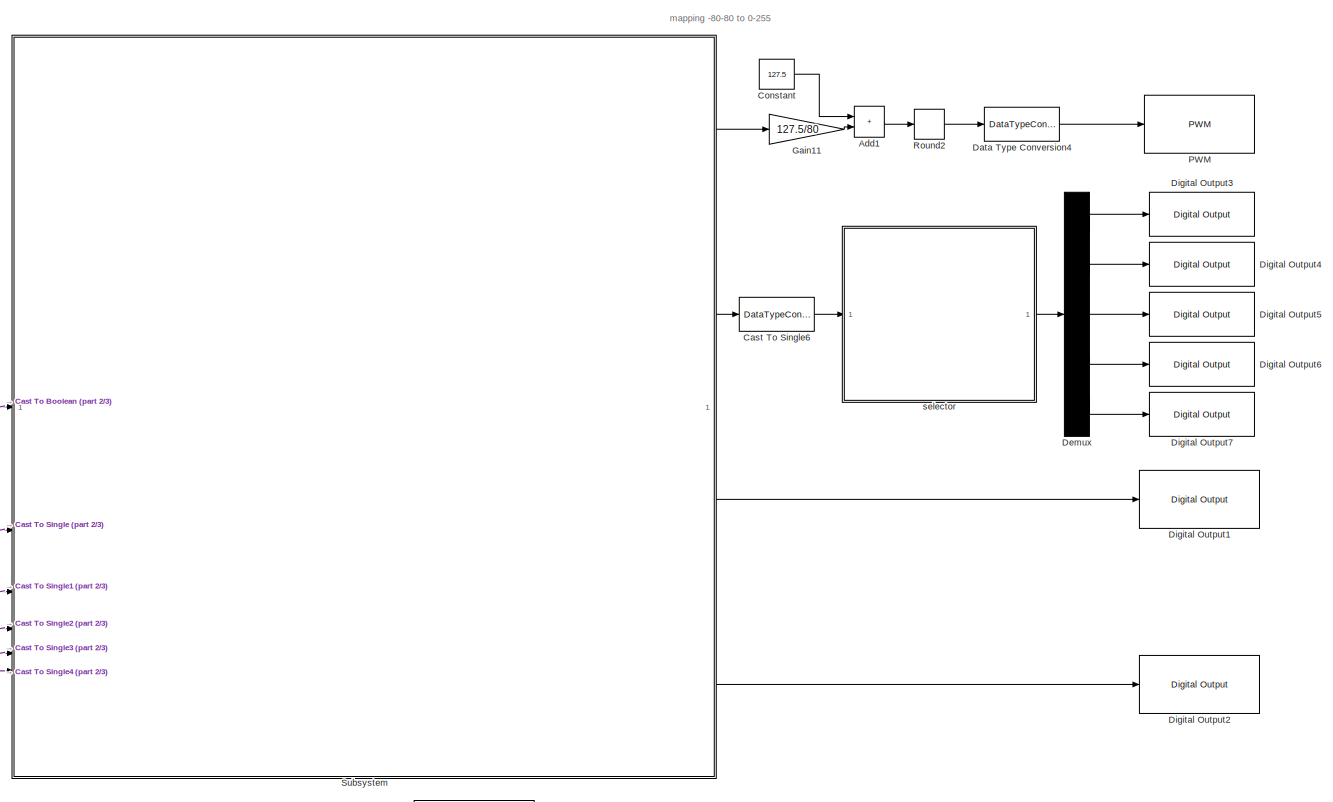
[diagram: root canvas - part 1/3, center side, full height]
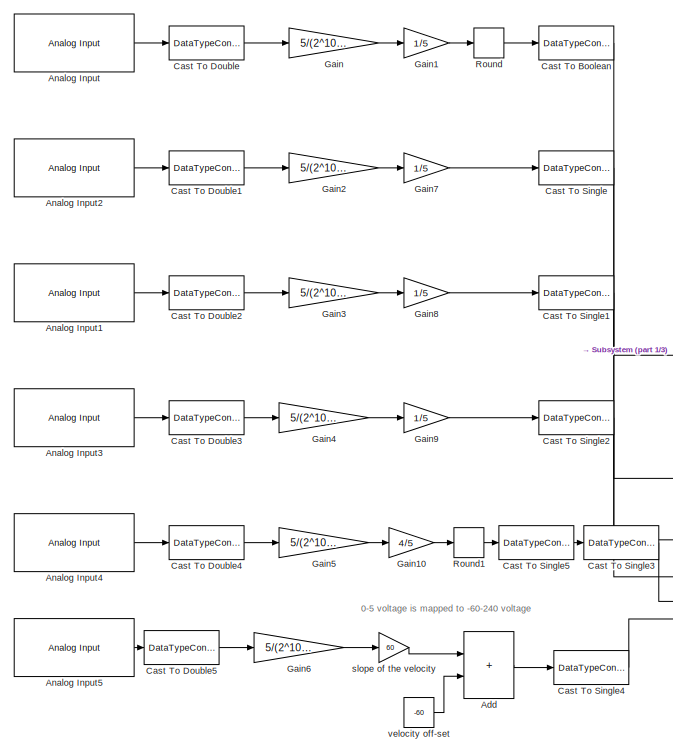
[diagram: root canvas - part 2/3, left side, full height]
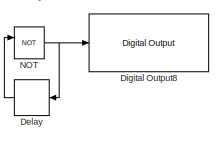
[diagram: root canvas - part 3/3, bottom center region]
MODEL slx_02bf0210b72b
KIND model
CONFIG AbsTol = auto
CONFIG EnableMultiTasking = on
CONFIG FixedStep = 1/10
CONFIG MaxStep = auto
CONFIG MinStep = auto
CONFIG RelTol = 1e-3
CONFIG SampleTimeConstraint = Unconstrained
CONFIG SolverName = FixedStepAuto
CONFIG StartTime = 0.0
CONFIG StopTime = 100
BLOCK [Sum] Add
  IconShape = rectangular
BLOCK [Sum] Add1
  IconShape = rectangular
BLOCK [Reference] Analog Input  REF=arduinolib/Analog Input
  SourceBlock = arduinolib/Analog Input
  SourceProductName = Common
  SourceType = Arduino Analog Input
BLOCK [Reference] Analog Input1  REF=arduinolib/Analog Input
  SourceBlock = arduinolib/Analog Input
  SourceProductName = Common
  SourceType = Arduino Analog Input
BLOCK [Reference] Analog Input2  REF=arduinolib/Analog Input
  SourceBlock = arduinolib/Analog Input
  SourceProductName = Common
  SourceType = Arduino Analog Input
BLOCK [Reference] Analog Input3  REF=arduinolib/Analog Input
  SourceBlock = arduinolib/Analog Input
  SourceProductName = Common
  SourceType = Arduino Analog Input
BLOCK [Reference] Analog Input4  REF=arduinolib/Analog Input
  SourceBlock = arduinolib/Analog Input
  SourceProductName = Common
  SourceType = Arduino Analog Input
BLOCK [Reference] Analog Input5  REF=arduinolib/Analog Input
  SourceBlock = arduinolib/Analog Input
  SourceProductName = Common
  SourceType = Arduino Analog Input
BLOCK [DataTypeConversion] Cast To Boolean
  OutDataTypeStr = boolean
  RndMeth = Floor
  SaturateOnIntegerOverflow = off
BLOCK [DataTypeConversion] Cast To Double
  OutDataTypeStr = double
  RndMeth = Floor
  SaturateOnIntegerOverflow = off
BLOCK [DataTypeConversion] Cast To Double1
  OutDataTypeStr = double
  RndMeth = Floor
  SaturateOnIntegerOverflow = off
BLOCK [DataTypeConversion] Cast To Double2
  OutDataTypeStr = double
  RndMeth = Floor
  SaturateOnIntegerOverflow = off
BLOCK [DataTypeConversion] Cast To Double3
  OutDataTypeStr = double
  RndMeth = Floor
  SaturateOnIntegerOverflow = off
BLOCK [DataTypeConversion] Cast To Double4
  OutDataTypeStr = double
  RndMeth = Floor
  SaturateOnIntegerOverflow = off
BLOCK [DataTypeConversion] Cast To Double5
  OutDataTypeStr = double
  RndMeth = Floor
  SaturateOnIntegerOverflow = off
BLOCK [DataTypeConversion] Cast To Single
  OutDataTypeStr = single
  RndMeth = Floor
  SaturateOnIntegerOverflow = off
BLOCK [DataTypeConversion] Cast To Single1
  OutDataTypeStr = single
  RndMeth = Floor
  SaturateOnIntegerOverflow = off
BLOCK [DataTypeConversion] Cast To Single2
  OutDataTypeStr = single
  RndMeth = Floor
  SaturateOnIntegerOverflow = off
BLOCK [DataTypeConversion] Cast To Single3
  OutDataTypeStr = Enum: TransmissionState
  RndMeth = Floor
  SaturateOnIntegerOverflow = off
BLOCK [DataTypeConversion] Cast To Single4
  OutDataTypeStr = single
  RndMeth = Floor
  SaturateOnIntegerOverflow = off
BLOCK [DataTypeConversion] Cast To Single5
  OutDataTypeStr = int32
  RndMeth = Floor
  SaturateOnIntegerOverflow = off
BLOCK [DataTypeConversion] Cast To Single6
  OutDataTypeStr = int32
  RndMeth = Floor
  SaturateOnIntegerOverflow = off
BLOCK [Constant] Constant
  Value = 127.5
BLOCK [DataTypeConversion] Data Type Conversion4
  OutDataTypeStr = int32
  RndMeth = Floor
  SaturateOnIntegerOverflow = off
BLOCK [Delay] Delay
  DelayLength = 1
  InputPortMap = u0
  InputProcessing = Columns as channels (frame based)
  NameLocation = top
BLOCK [Demux] Demux
  Outputs = 5
BLOCK [Reference] Digital Output1  REF=arduinolib/Digital Output
  SourceBlock = arduinolib/Digital Output
  SourceProductName = Common
  SourceType = Arduino Digital Output
BLOCK [Reference] Digital Output2  REF=arduinolib/Digital Output
  SourceBlock = arduinolib/Digital Output
  SourceProductName = Common
  SourceType = Arduino Digital Output
BLOCK [Reference] Digital Output3  REF=arduinolib/Digital Output
  SourceBlock = arduinolib/Digital Output
  SourceProductName = Common
  SourceType = Arduino Digital Output
BLOCK [Reference] Digital Output4  REF=arduinolib/Digital Output
  SourceBlock = arduinolib/Digital Output
  SourceProductName = Common
  SourceType = Arduino Digital Output
BLOCK [Reference] Digital Output5  REF=arduinolib/Digital Output
  SourceBlock = arduinolib/Digital Output
  SourceProductName = Common
  SourceType = Arduino Digital Output
BLOCK [Reference] Digital Output6  REF=arduinolib/Digital Output
  SourceBlock = arduinolib/Digital Output
  SourceProductName = Common
  SourceType = Arduino Digital Output
BLOCK [Reference] Digital Output7  REF=arduinolib/Digital Output
  SourceBlock = arduinolib/Digital Output
  SourceProductName = Common
  SourceType = Arduino Digital Output
BLOCK [Reference] Digital Output8  REF=arduinolib/Digital Output
  SourceBlock = arduinolib/Digital Output
  SourceProductName = Common
  SourceType = Arduino Digital Output
BLOCK [Gain] Gain
  Gain = 5/(2^10-1)
BLOCK [Gain] Gain1
  Gain = 1/5
BLOCK [Gain] Gain10
  Gain = 4/5
BLOCK [Gain] Gain11
  Gain = 127.5/80
BLOCK [Gain] Gain2
  Gain = 5/(2^10-1)
BLOCK [Gain] Gain3
  Gain = 5/(2^10-1)
BLOCK [Gain] Gain4
  Gain = 5/(2^10-1)
BLOCK [Gain] Gain5
  Gain = 5/(2^10-1)
BLOCK [Gain] Gain6
  Gain = 5/(2^10-1)
BLOCK [Gain] Gain7
  Gain = 1/5
BLOCK [Gain] Gain8
  Gain = 1/5
BLOCK [Gain] Gain9
  Gain = 1/5
BLOCK [Logic] NOT
  AllPortsSameDT = off
  IconShape = distinctive
  Operator = NOT
  OutDataTypeStr = boolean
BLOCK [Reference] PWM  REF=arduinolib/PWM
  SourceBlock = arduinolib/PWM
  SourceProductName = Common
  SourceType = Arduino PWM
BLOCK [Rounding] Round
  Operator = round
BLOCK [Rounding] Round1
  Operator = round
BLOCK [Rounding] Round2
  Operator = round
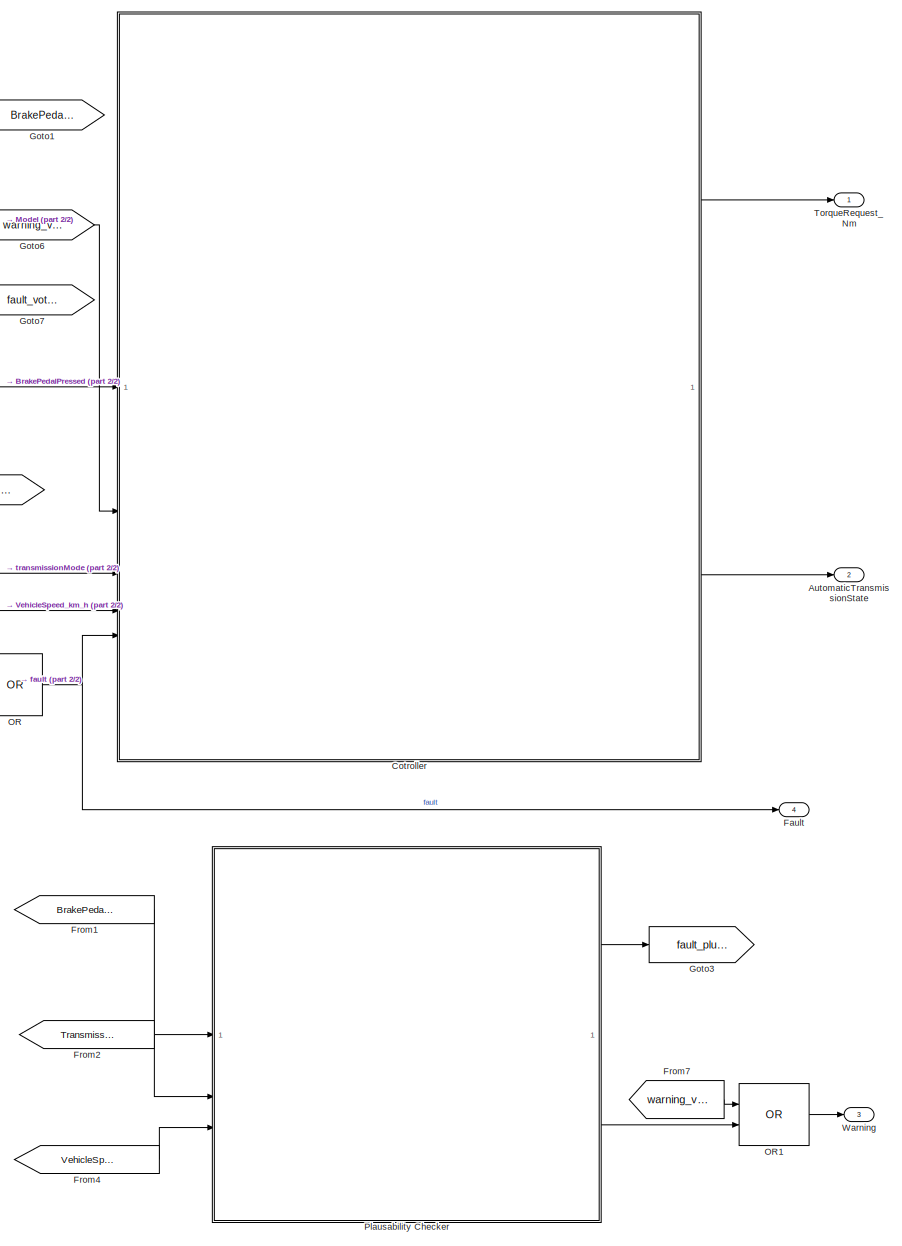
[diagram: Subsystem - part 1/2, right side, full height]
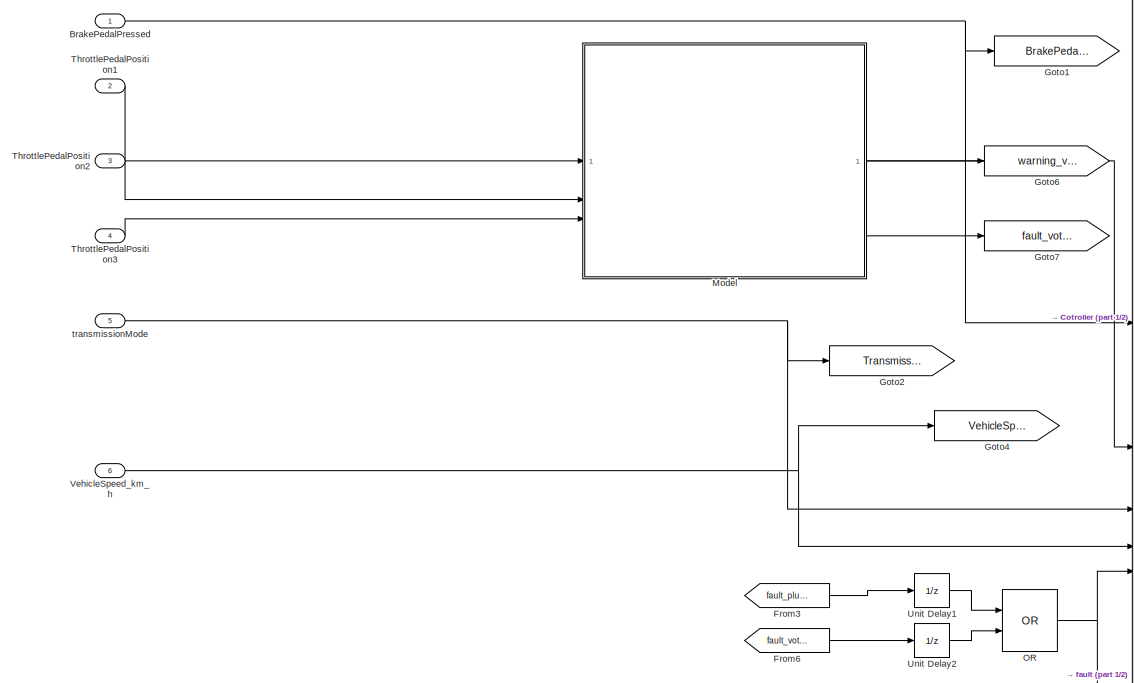
[diagram: Subsystem - part 2/2, middle left region]
BLOCK [SubSystem] Subsystem
BLOCK [Outport] Subsystem/AutomaticTransmissionState
  OutDataTypeStr = Enum: TransmissionState
  Port = 2
BLOCK [Inport] Subsystem/BrakePedalPressed
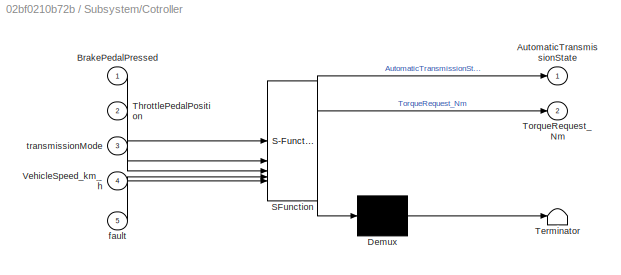
BLOCK [SubSystem] Subsystem/Cotroller
  ErrorFcn = Stateflow.Translate.translate
  PermitHierarchicalResolution = ExplicitOnly
  PortSchema = {"entries":[{"content":{"sides":[{"content":{"connectorIds":["In1","In2","In3","In4","In5"]},"type":"ConnectorPlacement.EquallySpacedRectSide","uuid":"fa3865f3-071a-4523-b56b-dfcb7b7ff1e1"},{"content":{"connectorIds":["Out2","Out1"],"side":"RIGHT"},"type":"ConnectorPlacement.EquallySpacedRectSide","uuid":"97edfdd5-6ca1-4319-83ef-4a85a5b2efa4"},{"content":{"side":"TOP"},"type":"ConnectorPlacement.E...<+253ch>
  SFBlockType = Chart
  TreatAsAtomicUnit = on
BLOCK [Demux] Subsystem/Cotroller/ Demux 
  Outputs = 1
BLOCK [S-Function] Subsystem/Cotroller/ SFunction 
  EnableBusSupport = on
  FunctionName = sf_sfun
  Parameters = MAX_RDB_ENGAGE_SPEED,MAX_TORQUE,MAX_TORQUE_REVERSE
  PortCounts = [5 3]
  SFcnIsStateOwnerBlock = off
  SFunctionDeploymentMode = off
  Tag = Stateflow S-Function 3
BLOCK [Terminator] Subsystem/Cotroller/ Terminator 
BLOCK [Outport] Subsystem/Cotroller/AutomaticTransmissionState
BLOCK [Inport] Subsystem/Cotroller/BrakePedalPressed
BLOCK [Inport] Subsystem/Cotroller/ThrottlePedalPosition
  Port = 2
BLOCK [Outport] Subsystem/Cotroller/TorqueRequest_Nm
  Port = 2
BLOCK [Inport] Subsystem/Cotroller/VehicleSpeed_km_h
  Port = 4
BLOCK [Inport] Subsystem/Cotroller/fault
  Port = 5
BLOCK [Inport] Subsystem/Cotroller/transmissionMode
  Port = 3
BLOCK [Outport] Subsystem/Fault
  OutDataTypeStr = boolean
  Port = 4
BLOCK [From] Subsystem/From1
  GotoTag = BrakePedalPressed
BLOCK [From] Subsystem/From2
  GotoTag = TransmissionMode
BLOCK [From] Subsystem/From3
  GotoTag = fault_plusibility
BLOCK [From] Subsystem/From4
  GotoTag = VehicleSpeed_km_h
BLOCK [From] Subsystem/From6
  GotoTag = fault_voter
BLOCK [From] Subsystem/From7
  GotoTag = warning_voter
BLOCK [Goto] Subsystem/Goto1
  GotoTag = BrakePedalPressed
BLOCK [Goto] Subsystem/Goto2
  GotoTag = TransmissionMode
BLOCK [Goto] Subsystem/Goto3
  GotoTag = fault_plusibility
BLOCK [Goto] Subsystem/Goto4
  GotoTag = VehicleSpeed_km_h
BLOCK [Goto] Subsystem/Goto6
  GotoTag = warning_voter
BLOCK [Goto] Subsystem/Goto7
  GotoTag = fault_voter
BLOCK [ModelReference] Subsystem/Model
  ModelNameDialog = voter.slx
  ModelReferenceVersion = 1.26
BLOCK [Logic] Subsystem/OR
  AllPortsSameDT = off
  IconShape = distinctive
  Operator = OR
  OutDataTypeStr = boolean
BLOCK [Logic] Subsystem/OR1
  AllPortsSameDT = off
  IconShape = distinctive
  Operator = OR
  OutDataTypeStr = boolean
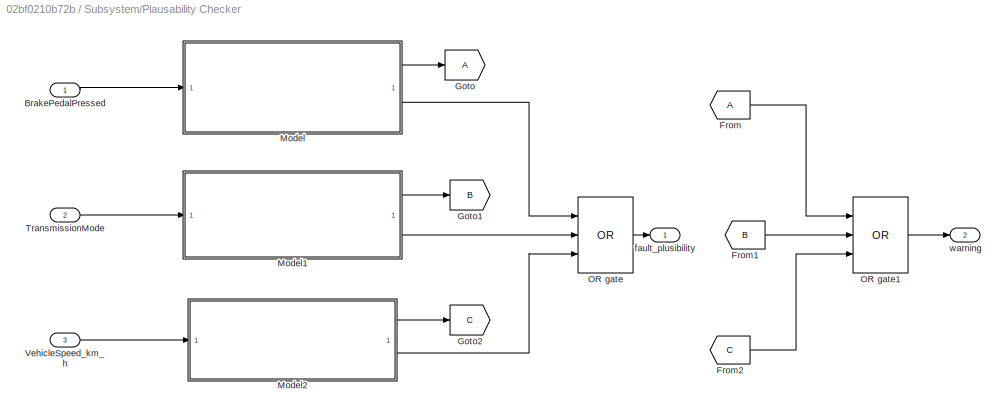
BLOCK [SubSystem] Subsystem/Plausability Checker
BLOCK [Inport] Subsystem/Plausability Checker/BrakePedalPressed
BLOCK [From] Subsystem/Plausability Checker/From
BLOCK [From] Subsystem/Plausability Checker/From1
  GotoTag = B
BLOCK [From] Subsystem/Plausability Checker/From2
  GotoTag = C
BLOCK [Goto] Subsystem/Plausability Checker/Goto
BLOCK [Goto] Subsystem/Plausability Checker/Goto1
  GotoTag = B
BLOCK [Goto] Subsystem/Plausability Checker/Goto2
  GotoTag = C
BLOCK [ModelReference] Subsystem/Plausability Checker/Model
  ModelNameDialog = BrakePedalPressed_plausibility.slx
  ModelReferenceVersion = 1.19
BLOCK [ModelReference] Subsystem/Plausability Checker/Model1
  ModelNameDialog = TransmissionMode_plausibility.slx
  ModelReferenceVersion = 1.13
BLOCK [ModelReference] Subsystem/Plausability Checker/Model2
  ModelNameDialog = velocity_plausibility.slx
  ModelReferenceVersion = 1.14
BLOCK [Logic] Subsystem/Plausability Checker/OR gate
  AllPortsSameDT = off
  IconShape = distinctive
  Inputs = 3
  Operator = OR
  OutDataTypeStr = boolean
BLOCK [Logic] Subsystem/Plausability Checker/OR gate1
  AllPortsSameDT = off
  IconShape = distinctive
  Inputs = 3
  Operator = OR
  OutDataTypeStr = boolean
BLOCK [Inport] Subsystem/Plausability Checker/TransmissionMode
  OutDataTypeStr = Enum: TransmissionState
  Port = 2
BLOCK [Inport] Subsystem/Plausability Checker/VehicleSpeed_km_h
  Port = 3
BLOCK [Outport] Subsystem/Plausability Checker/fault_plusibility
  OutDataTypeStr = boolean
BLOCK [Outport] Subsystem/Plausability Checker/warning
  Port = 2
BLOCK [Inport] Subsystem/ThrottlePedalPosition1
  Port = 2
BLOCK [Inport] Subsystem/ThrottlePedalPosition2
  Port = 3
BLOCK [Inport] Subsystem/ThrottlePedalPosition3
  Port = 4
BLOCK [Outport] Subsystem/TorqueRequest_Nm
  OutDataTypeStr = single
  Unit = N*m
BLOCK [UnitDelay] Subsystem/Unit Delay1
  HasFrameUpgradeWarning = on
  SampleTime = -1
BLOCK [UnitDelay] Subsystem/Unit Delay2
  HasFrameUpgradeWarning = on
  SampleTime = -1
BLOCK [Inport] Subsystem/VehicleSpeed_km_h
  Port = 6
BLOCK [Outport] Subsystem/Warning
  OutDataTypeStr = boolean
  Port = 3
BLOCK [Inport] Subsystem/transmissionMode
  Port = 5
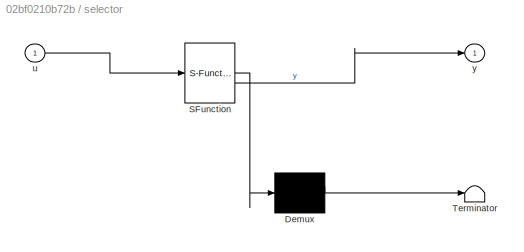
BLOCK [SubSystem] selector
  ErrorFcn = Stateflow.Translate.translate
  PermitHierarchicalResolution = ExplicitOnly
  SFBlockType = MATLAB Function
  TreatAsAtomicUnit = on
BLOCK [Demux] selector/ Demux 
  Outputs = 1
BLOCK [S-Function] selector/ SFunction 
  EnableBusSupport = on
  FunctionName = sf_sfun
  PortCounts = [1 2]
  SFcnIsStateOwnerBlock = off
  SFunctionDeploymentMode = off
  Tag = Stateflow S-Function 2
BLOCK [Terminator] selector/ Terminator 
BLOCK [Inport] selector/u
BLOCK [Outport] selector/y
BLOCK [Gain] slope of the velocity
  Gain = 60
BLOCK [Constant] velocity off-set
  Value = -60
ANNOTATION (root): 0-5 voltage is mapped to -60-240 voltage
ANNOTATION (root): mapping -80-80 to 0-255
LINE Add1:1 -> Round2:1
LINE Add:1 -> Cast To Single4:1
LINE Analog Input1:1 -> Cast To Double2:1
LINE Analog Input2:1 -> Cast To Double1:1
LINE Analog Input3:1 -> Cast To Double3:1
LINE Analog Input4:1 -> Cast To Double4:1
LINE Analog Input5:1 -> Cast To Double5:1
LINE Analog Input:1 -> Cast To Double:1
LINE Cast To Boolean:1 -> Subsystem:1
LINE Cast To Double1:1 -> Gain2:1
LINE Cast To Double2:1 -> Gain3:1
LINE Cast To Double3:1 -> Gain4:1
LINE Cast To Double4:1 -> Gain5:1
LINE Cast To Double5:1 -> Gain6:1
LINE Cast To Double:1 -> Gain:1
LINE Cast To Single1:1 -> Subsystem:3
LINE Cast To Single2:1 -> Subsystem:4
LINE Cast To Single3:1 -> Subsystem:5
LINE Cast To Single4:1 -> Subsystem:6
LINE Cast To Single5:1 -> Cast To Single3:1
LINE Cast To Single6:1 -> selector:1
LINE Cast To Single:1 -> Subsystem:2
LINE Constant:1 -> Add1:1
LINE Data Type Conversion4:1 -> PWM:1
LINE Delay:1 -> NOT:1
LINE Demux:1 -> Digital Output3:1
LINE Demux:2 -> Digital Output4:1
LINE Demux:3 -> Digital Output5:1
LINE Demux:4 -> Digital Output6:1
LINE Demux:5 -> Digital Output7:1
LINE Gain10:1 -> Round1:1
LINE Gain11:1 -> Add1:2
LINE Gain1:1 -> Round:1
LINE Gain2:1 -> Gain7:1
LINE Gain3:1 -> Gain8:1
LINE Gain4:1 -> Gain9:1
LINE Gain5:1 -> Gain10:1
LINE Gain6:1 -> slope of the velocity:1
LINE Gain7:1 -> Cast To Single:1
LINE Gain8:1 -> Cast To Single1:1
LINE Gain9:1 -> Cast To Single2:1
LINE Gain:1 -> Gain1:1
NET NOT:1 -> Delay:1, Digital Output8:1
LINE Round1:1 -> Cast To Single5:1
LINE Round2:1 -> Data Type Conversion4:1
LINE Round:1 -> Cast To Boolean:1
NET Subsystem/BrakePedalPressed:1 -> Subsystem/Cotroller:1, Subsystem/Goto1:1
LINE Subsystem/Cotroller:1 -> Subsystem/AutomaticTransmissionState:1
LINE Subsystem/Cotroller:2 -> Subsystem/TorqueRequest_Nm:1
LINE Subsystem/From1:1 -> Subsystem/Plausability Checker:1
LINE Subsystem/From2:1 -> Subsystem/Plausability Checker:2
LINE Subsystem/From3:1 -> Subsystem/Unit Delay1:1
LINE Subsystem/From4:1 -> Subsystem/Plausability Checker:3
LINE Subsystem/From6:1 -> Subsystem/Unit Delay2:1
LINE Subsystem/From7:1 -> Subsystem/OR1:1
LINE Subsystem/Model:1 -> Subsystem/Cotroller:2
LINE Subsystem/Model:2 -> Subsystem/Goto6:1
LINE Subsystem/Model:3 -> Subsystem/Goto7:1
LINE Subsystem/OR1:1 -> Subsystem/Warning:1
NET Subsystem/OR:1 -> Subsystem/Cotroller:5, Subsystem/Fault:1
LINE Subsystem/Plausability Checker/BrakePedalPressed:1 -> Subsystem/Plausability Checker/Model:1
LINE Subsystem/Plausability Checker/From1:1 -> Subsystem/Plausability Checker/OR gate1:2
LINE Subsystem/Plausability Checker/From2:1 -> Subsystem/Plausability Checker/OR gate1:3
LINE Subsystem/Plausability Checker/From:1 -> Subsystem/Plausability Checker/OR gate1:1
LINE Subsystem/Plausability Checker/Model1:1 -> Subsystem/Plausability Checker/Goto1:1
LINE Subsystem/Plausability Checker/Model1:2 -> Subsystem/Plausability Checker/OR gate:2
LINE Subsystem/Plausability Checker/Model2:1 -> Subsystem/Plausability Checker/Goto2:1
LINE Subsystem/Plausability Checker/Model2:2 -> Subsystem/Plausability Checker/OR gate:3
LINE Subsystem/Plausability Checker/Model:1 -> Subsystem/Plausability Checker/Goto:1
LINE Subsystem/Plausability Checker/Model:2 -> Subsystem/Plausability Checker/OR gate:1
LINE Subsystem/Plausability Checker/OR gate1:1 -> Subsystem/Plausability Checker/warning:1
LINE Subsystem/Plausability Checker/OR gate:1 -> Subsystem/Plausability Checker/fault_plusibility:1
LINE Subsystem/Plausability Checker/TransmissionMode:1 -> Subsystem/Plausability Checker/Model1:1
LINE Subsystem/Plausability Checker/VehicleSpeed_km_h:1 -> Subsystem/Plausability Checker/Model2:1
LINE Subsystem/Plausability Checker:1 -> Subsystem/Goto3:1
LINE Subsystem/Plausability Checker:2 -> Subsystem/OR1:2
LINE Subsystem/ThrottlePedalPosition1:1 -> Subsystem/Model:1
LINE Subsystem/ThrottlePedalPosition2:1 -> Subsystem/Model:2
LINE Subsystem/ThrottlePedalPosition3:1 -> Subsystem/Model:3
LINE Subsystem/Unit Delay1:1 -> Subsystem/OR:1
LINE Subsystem/Unit Delay2:1 -> Subsystem/OR:2
NET Subsystem/VehicleSpeed_km_h:1 -> Subsystem/Cotroller:4, Subsystem/Goto4:1
NET Subsystem/transmissionMode:1 -> Subsystem/Cotroller:3, Subsystem/Goto2:1
LINE Subsystem:1 -> Gain11:1
LINE Subsystem:2 -> Cast To Single6:1
LINE Subsystem:3 -> Digital Output1:1
LINE Subsystem:4 -> Digital Output2:1
LINE selector:1 -> Demux:1
LINE slope of the velocity:1 -> Add:1
LINE velocity off-set:1 -> Add:2
note: NET lines group one-source signal fan-out (src -> all destinations, sorted); 1:1 wires keep LINE
CHART selector states=1 transitions=1
  STATE_LABEL 'eML_blk_kernel()'
  STATE_LABEL 'SCRIPT:\nfunction y = selector(u)\n\ny = false(1, 5);\n\nif u >= 0 && u <= 4\n    y(u+1) = true;\nend'
CHART Subsystem/Cotroller states=13 transitions=27
  STATE_LABEL 'Park\nen:\nAutomaticTransmissionState = TransmissionState.Park;\ndu:\nTorqueRequest_Nm = single(0);\n'
  STATE_LABEL 'Neutral\nen:\nAutomaticTransmissionState = TransmissionState.Neutral;\ndu:\nTorqueRequest_Nm = single(0);'
  STATE_LABEL 'Drive\nen:\nAutomaticTransmissionState = TransmissionState.Drive;\n'
  STATE_LABEL 'ZeroTorque1\ndu:\nTorqueRequest_Nm = single(0);\n'
  STATE_LABEL 'Acceleration\ndu:\nTorqueRequest_Nm = single(MAX_TORQUE*(ThrottlePedalPosition));'
  STATE_LABEL 'StartToMove\ndu:\nTorqueRequest_Nm = single(5);\n'
  STATE_LABEL '[BrakePedalPressed ~= 1 && VehicleSpeed_km_h  < 5 ]'
  STATE_LABEL '[BrakePedalPressed == 1]'
  STATE_LABEL '[(BrakePedalPressed ~= 1)]'
  STATE_LABEL '[ (BrakePedalPressed == 1)]'
  STATE_LABEL '[ThrottlePedalPosition > 0 && BrakePedalPressed ~= 1]'
  STATE_LABEL 'ZeroTorque1\ndu:\nTorqueRequest_Nm = single(0);\n'
  STATE_LABEL 'Acceleration\ndu:\nTorqueRequest_Nm = single(MAX_TORQUE*(ThrottlePedalPosition));'
  STATE_LABEL 'StartToMove\ndu:\nTorqueRequest_Nm = single(5);\n'
  STATE_LABEL 'Brake\nen:\nAutomaticTransmissionState = TransmissionState.Brake'
  STATE_LABEL 'AccelerationRegion\ndu:\nTorqueRequest_Nm = single(MAX_TORQUE*(3/2)*(ThrottlePedalPosition - (1/3)));'
  STATE_LABEL 'ZeroTorque\nTorqueRequest_Nm = single(0);\n'
  STATE_LABEL 'DecelerationRegion\ndu:\nTorqueRequest_Nm = single(-MAX_TORQUE*(1 - 3*ThrottlePedalPosition));'
  STATE_LABEL '[ThrottlePedalPosition > (1/3) && BrakePedalPressed == 0]'
  STATE_LABEL '[BrakePedalPressed == 1]'
  STATE_LABEL '[ (ThrottlePedalPosition >(1/3)) && BrakePedalPressed == 0]'
  STATE_LABEL '[ ThrottlePedalPosition < (1/3) && BrakePedalPressed == 0]'
  STATE_LABEL '[VehicleSpeed_km_h < MAX_RDB_ENGAGE_SPEED || BrakePedalPressed == 1]'
  STATE_LABEL 'AccelerationRegion\ndu:\nTorqueRequest_Nm = single(MAX_TORQUE*(3/2)*(ThrottlePedalPosition - (1/3)));'
  STATE_LABEL 'ZeroTorque\nTorqueRequest_Nm = single(0);\n'
  STATE_LABEL 'DecelerationRegion\ndu:\nTorqueRequest_Nm = single(-MAX_TORQUE*(1 - 3*ThrottlePedalPosition));'
  STATE_LABEL 'Reverse\nen:\nAutomaticTransmissionState = TransmissionState.Reverse;\n'
  STATE_LABEL 'Deceleration\ndu:\nTorqueRequest_Nm = single(-MAX_TORQUE_REVERSE*(ThrottlePedalPosition));'
  STATE_LABEL 'ZeroTorque\nTorqueRequest_Nm = single(0);\n'
  STATE_LABEL '[(BrakePedalPressed == 0)]'
  STATE_LABEL '[(BrakePedalPressed == 1)]'
  STATE_LABEL 'Deceleration\ndu:\nTorqueRequest_Nm = single(-MAX_TORQUE_REVERSE*(ThrottlePedalPosition));'
  STATE_LABEL 'ZeroTorque\nTorqueRequest_Nm = single(0);\n'
CHART  states=0 transitions=0
CHART  states=0 transitions=0
